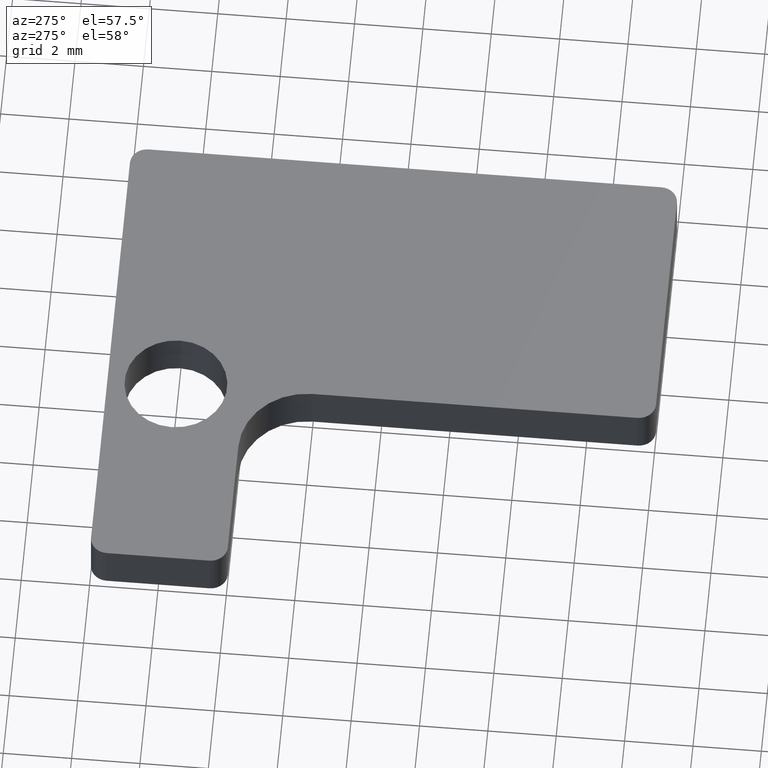
[diagram: clean part render]
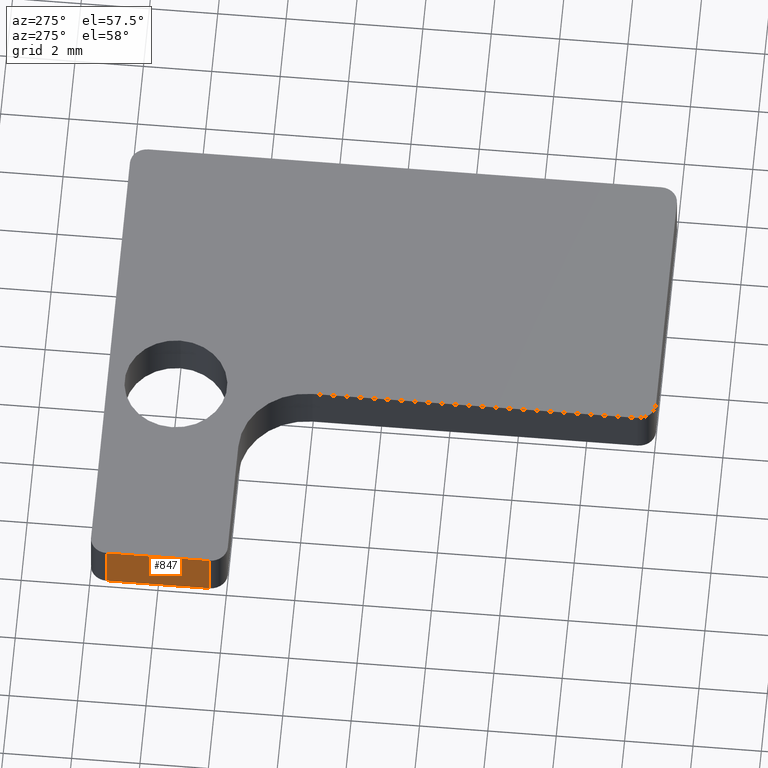
[diagram: same view with one face highlighted and labeled with its STEP entity id]
A machine part, auxiliary view. The second image highlights one B-rep face of the part: STEP entity #847.
In plain terms, the highlighted planar face has unit normal (1, 0, 0).
Its self-contained STEP definition (entity closure, byte-faithful):
#44 = PLANE('',#45);
#45 = AXIS2_PLACEMENT_3D('',#46,#47,#48);
#46 = CARTESIAN_POINT('',(2.2,9.2,0.));
#47 = DIRECTION('',(0.,0.,1.));
#48 = DIRECTION('',(1.,0.,0.));
#100 = PLANE('',#101);
#101 = AXIS2_PLACEMENT_3D('',#102,#103,#104);
#102 = CARTESIAN_POINT('',(2.2,9.2,1.5));
#103 = DIRECTION('',(0.,0.,1.));
#104 = DIRECTION('',(1.,0.,0.));
#126 = CYLINDRICAL_SURFACE('',#127,0.5);
#127 = AXIS2_PLACEMENT_3D('',#128,#129,#130);
#128 = CARTESIAN_POINT('',(-5.5,12.5,0.));
#129 = DIRECTION('',(0.,0.,1.));
#130 = DIRECTION('',(0.,-1.,0.));
#374 = VERTEX_POINT('',#375);
#375 = CARTESIAN_POINT('',(-6.,15.5,0.));
#394 = CYLINDRICAL_SURFACE('',#395,0.5);
#395 = AXIS2_PLACEMENT_3D('',#396,#397,#398);
#396 = CARTESIAN_POINT('',(-5.5,15.5,0.));
#397 = DIRECTION('',(0.,0.,1.));
#398 = DIRECTION('',(-1.,0.,0.));
#406 = EDGE_CURVE('',#374,#407,#409,.T.);
#407 = VERTEX_POINT('',#408);
#408 = CARTESIAN_POINT('',(-6.,12.5,0.));
#409 = SURFACE_CURVE('',#410,(#414,#421),.PCURVE_S1.);
#410 = LINE('',#411,#412);
#411 = CARTESIAN_POINT('',(-6.,16.,0.));
#412 = VECTOR('',#413,1.);
#413 = DIRECTION('',(0.,-1.,0.));
#414 = PCURVE('',#44,#415);
#415 = DEFINITIONAL_REPRESENTATION('',(#416),#420);
#416 = LINE('',#417,#418);
#417 = CARTESIAN_POINT('',(-8.2,6.8));
#418 = VECTOR('',#419,1.);
#419 = DIRECTION('',(0.,-1.));
#420 = ( GEOMETRIC_REPRESENTATION_CONTEXT(2) 
PARAMETRIC_REPRESENTATION_CONTEXT() REPRESENTATION_CONTEXT('2D SPACE',''
  ) );
#421 = PCURVE('',#422,#427);
#422 = PLANE('',#423);
#423 = AXIS2_PLACEMENT_3D('',#424,#425,#426);
#424 = CARTESIAN_POINT('',(-6.,16.,0.));
#425 = DIRECTION('',(1.,0.,0.));
#426 = DIRECTION('',(0.,-1.,0.));
#427 = DEFINITIONAL_REPRESENTATION('',(#428),#432);
#428 = LINE('',#429,#430);
#429 = CARTESIAN_POINT('',(0.,0.));
#430 = VECTOR('',#431,1.);
#431 = DIRECTION('',(1.,0.));
#432 = ( GEOMETRIC_REPRESENTATION_CONTEXT(2) 
PARAMETRIC_REPRESENTATION_CONTEXT() REPRESENTATION_CONTEXT('2D SPACE',''
  ) );
#495 = EDGE_CURVE('',#407,#496,#498,.T.);
#496 = VERTEX_POINT('',#497);
#497 = CARTESIAN_POINT('',(-6.,12.5,1.5));
#498 = SURFACE_CURVE('',#499,(#503,#510),.PCURVE_S1.);
#499 = LINE('',#500,#501);
#500 = CARTESIAN_POINT('',(-6.,12.5,0.));
#501 = VECTOR('',#502,1.);
#502 = DIRECTION('',(0.,0.,1.));
#503 = PCURVE('',#126,#504);
#504 = DEFINITIONAL_REPRESENTATION('',(#505),#509);
#505 = LINE('',#506,#507);
#506 = CARTESIAN_POINT('',(-1.570796326795,0.));
#507 = VECTOR('',#508,1.);
#508 = DIRECTION('',(-0.,1.));
#509 = ( GEOMETRIC_REPRESENTATION_CONTEXT(2) 
PARAMETRIC_REPRESENTATION_CONTEXT() REPRESENTATION_CONTEXT('2D SPACE',''
  ) );
#510 = PCURVE('',#422,#511);
#511 = DEFINITIONAL_REPRESENTATION('',(#512),#516);
#512 = LINE('',#513,#514);
#513 = CARTESIAN_POINT('',(3.5,0.));
#514 = VECTOR('',#515,1.);
#515 = DIRECTION('',(0.,-1.));
#516 = ( GEOMETRIC_REPRESENTATION_CONTEXT(2) 
PARAMETRIC_REPRESENTATION_CONTEXT() REPRESENTATION_CONTEXT('2D SPACE',''
  ) );
#773 = VERTEX_POINT('',#774);
#774 = CARTESIAN_POINT('',(-6.,15.5,1.5));
#800 = EDGE_CURVE('',#773,#496,#801,.T.);
#801 = SURFACE_CURVE('',#802,(#806,#813),.PCURVE_S1.);
#802 = LINE('',#803,#804);
#803 = CARTESIAN_POINT('',(-6.,16.,1.5));
#804 = VECTOR('',#805,1.);
#805 = DIRECTION('',(0.,-1.,0.));
#806 = PCURVE('',#100,#807);
#807 = DEFINITIONAL_REPRESENTATION('',(#808),#812);
#808 = LINE('',#809,#810);
#809 = CARTESIAN_POINT('',(-8.2,6.8));
#810 = VECTOR('',#811,1.);
#811 = DIRECTION('',(0.,-1.));
#812 = ( GEOMETRIC_REPRESENTATION_CONTEXT(2) 
PARAMETRIC_REPRESENTATION_CONTEXT() REPRESENTATION_CONTEXT('2D SPACE',''
  ) );
#813 = PCURVE('',#422,#814);
#814 = DEFINITIONAL_REPRESENTATION('',(#815),#819);
#815 = LINE('',#816,#817);
#816 = CARTESIAN_POINT('',(0.,-1.5));
#817 = VECTOR('',#818,1.);
#818 = DIRECTION('',(1.,0.));
#819 = ( GEOMETRIC_REPRESENTATION_CONTEXT(2) 
PARAMETRIC_REPRESENTATION_CONTEXT() REPRESENTATION_CONTEXT('2D SPACE',''
  ) );
#847 = ADVANCED_FACE('',(#848),#422,.F.);
#848 = FACE_BOUND('',#849,.F.);
#849 = EDGE_LOOP('',(#850,#851,#872,#873));
#850 = ORIENTED_EDGE('',*,*,#406,.F.);
#851 = ORIENTED_EDGE('',*,*,#852,.T.);
#852 = EDGE_CURVE('',#374,#773,#853,.T.);
#853 = SURFACE_CURVE('',#854,(#858,#865),.PCURVE_S1.);
#854 = LINE('',#855,#856);
#855 = CARTESIAN_POINT('',(-6.,15.5,0.));
#856 = VECTOR('',#857,1.);
#857 = DIRECTION('',(0.,0.,1.));
#858 = PCURVE('',#422,#859);
#859 = DEFINITIONAL_REPRESENTATION('',(#860),#864);
#860 = LINE('',#861,#862);
#861 = CARTESIAN_POINT('',(0.5,0.));
#862 = VECTOR('',#863,1.);
#863 = DIRECTION('',(0.,-1.));
#864 = ( GEOMETRIC_REPRESENTATION_CONTEXT(2) 
PARAMETRIC_REPRESENTATION_CONTEXT() REPRESENTATION_CONTEXT('2D SPACE',''
  ) );
#865 = PCURVE('',#394,#866);
#866 = DEFINITIONAL_REPRESENTATION('',(#867),#871);
#867 = LINE('',#868,#869);
#868 = CARTESIAN_POINT('',(-0.,0.));
#869 = VECTOR('',#870,1.);
#870 = DIRECTION('',(-0.,1.));
#871 = ( GEOMETRIC_REPRESENTATION_CONTEXT(2) 
PARAMETRIC_REPRESENTATION_CONTEXT() REPRESENTATION_CONTEXT('2D SPACE',''
  ) );
#872 = ORIENTED_EDGE('',*,*,#800,.T.);
#873 = ORIENTED_EDGE('',*,*,#495,.F.);